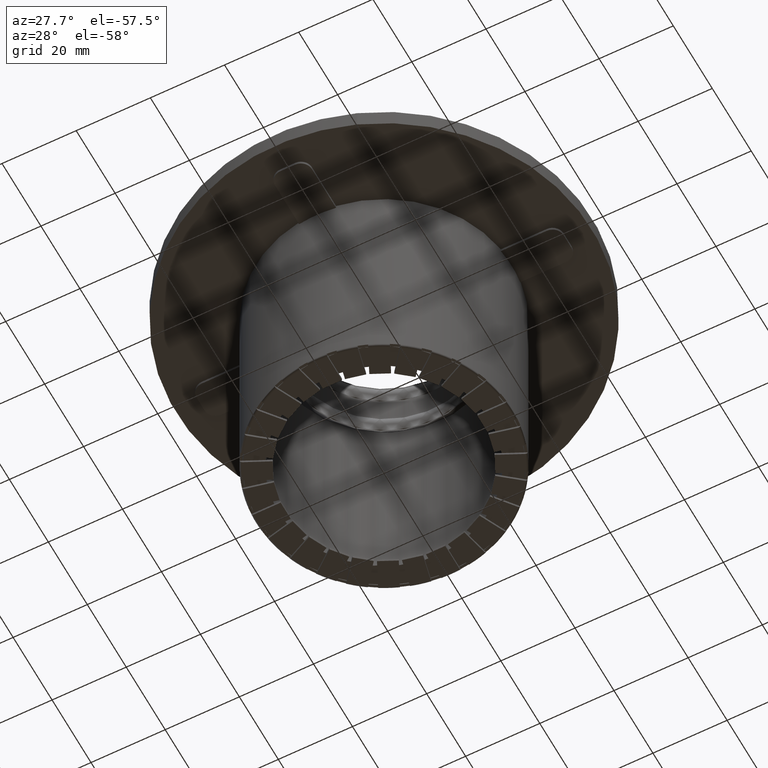
[diagram: clean part render]
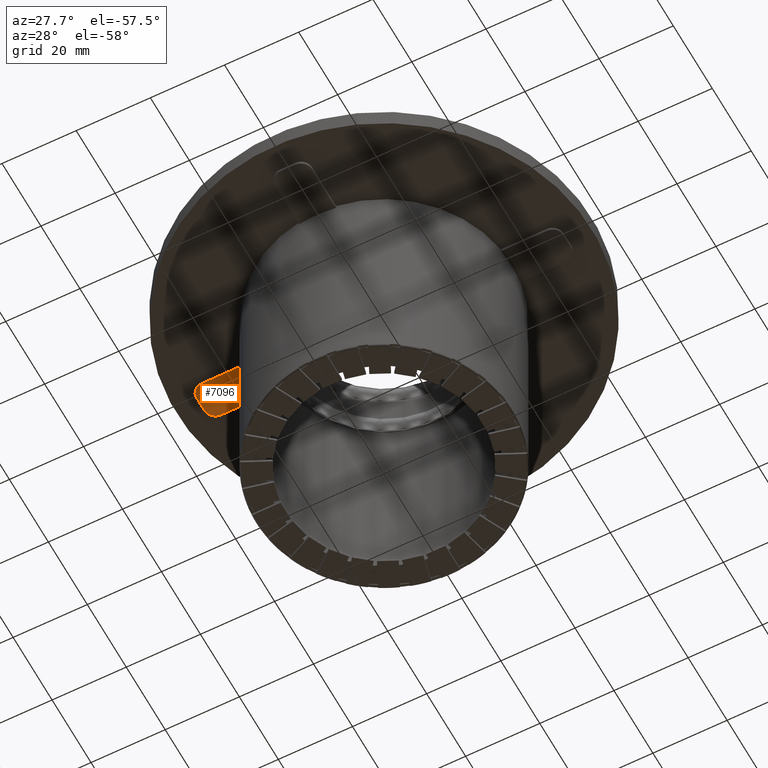
[diagram: same view with one face highlighted and labeled with its STEP entity id]
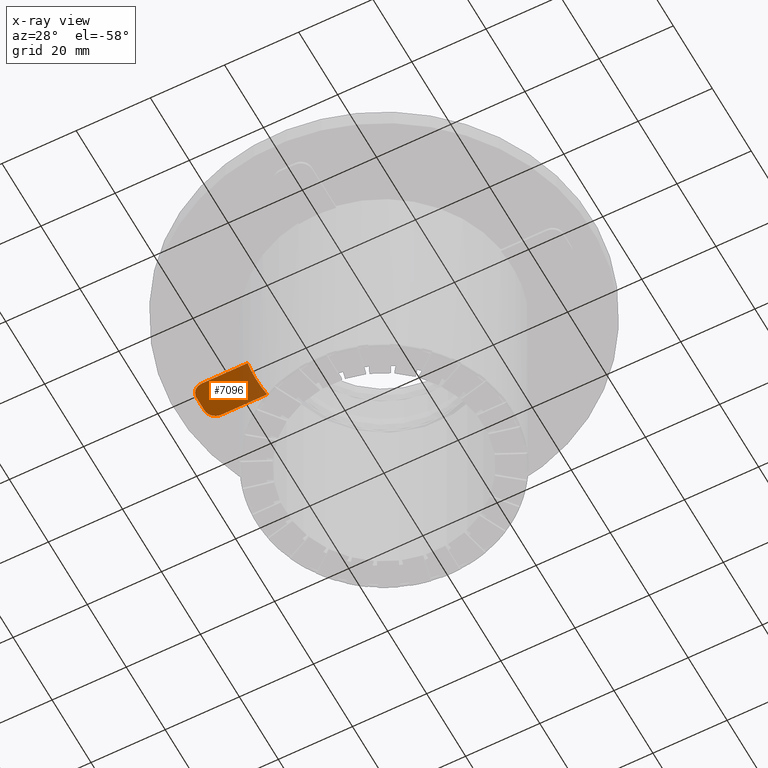
[diagram: x-ray of the same camera — body ghosted, the highlighted face saturated]
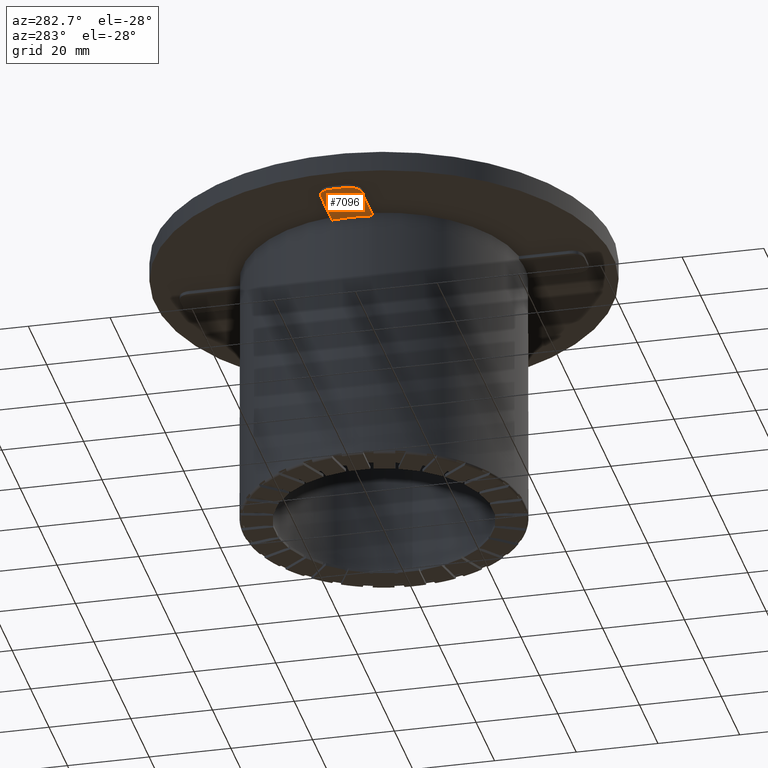
[diagram: same view with one face highlighted and labeled with its STEP entity id]
A machine part, auxiliary view. The second image highlights one B-rep face of the part: STEP entity #7096.
The next image is the same camera in x-ray: the body ghosted, the highlighted face saturated — about 31% of this face is hidden behind the body in this view.
A second angle (auxiliary view) of the same face is appended — the face is thin or edge-on in the first view.
In plain terms, the highlighted planar face has unit normal (0, 0, 1).
Its self-contained STEP definition (entity closure, byte-faithful):
#1334=CARTESIAN_POINT('',(-34.13575837739657,-4.999999999999999,63.499999999999979));
#1335=VERTEX_POINT('',#1334);
#1342=CARTESIAN_POINT('',(-34.13575837739657,5.0,63.499999999999979));
#1343=VERTEX_POINT('',#1342);
#1344=CARTESIAN_POINT('',(0.0,0.0,63.499999999999979));
#1345=DIRECTION('',(0.0,0.0,-1.0));
#1346=DIRECTION('',(-1.0,0.0,0.0));
#1347=AXIS2_PLACEMENT_3D('',#1344,#1345,#1346);
#1348=CIRCLE('',#1347,34.5);
#1349=EDGE_CURVE('',#1335,#1343,#1348,.T.);
#6938=CARTESIAN_POINT('',(-46.5,5.000000000000001,63.499999999999979));
#6939=VERTEX_POINT('',#6938);
#6940=CARTESIAN_POINT('',(-49.500000000000014,2.0,63.499999999999979));
#6941=VERTEX_POINT('',#6940);
#6942=CARTESIAN_POINT('',(-46.5,1.999999999999999,63.5));
#6943=DIRECTION('',(0.0,0.0,1.0));
#6944=DIRECTION('',(0.0,1.0,0.0));
#6945=AXIS2_PLACEMENT_3D('',#6942,#6943,#6944);
#6946=CIRCLE('',#6945,2.999999999999991);
#6947=EDGE_CURVE('',#6939,#6941,#6946,.T.);
#6980=CARTESIAN_POINT('',(-49.500000000000014,-2.0,63.499999999999979));
#6981=VERTEX_POINT('',#6980);
#6982=CARTESIAN_POINT('',(-49.500000000000014,2.0,63.5));
#6983=DIRECTION('',(0.0,-1.0,0.0));
#6984=VECTOR('',#6983,4.0);
#6985=LINE('',#6982,#6984);
#6986=EDGE_CURVE('',#6941,#6981,#6985,.T.);
#7011=CARTESIAN_POINT('',(-46.5,-5.0,63.499999999999979));
#7012=VERTEX_POINT('',#7011);
#7013=CARTESIAN_POINT('',(-46.5,-2.0,63.5));
#7014=DIRECTION('',(0.0,0.0,1.0));
#7015=DIRECTION('',(-1.0,0.0,0.0));
#7016=AXIS2_PLACEMENT_3D('',#7013,#7014,#7015);
#7017=CIRCLE('',#7016,3.000000000000002);
#7018=EDGE_CURVE('',#6981,#7012,#7017,.T.);
#7044=CARTESIAN_POINT('',(-46.5,-5.0,63.5));
#7045=DIRECTION('',(1.0,0.0,0.0));
#7046=VECTOR('',#7045,12.36424162260343);
#7047=LINE('',#7044,#7046);
#7048=EDGE_CURVE('',#7012,#1335,#7047,.T.);
#7066=CARTESIAN_POINT('',(-34.13575837739657,5.0,63.5));
#7067=DIRECTION('',(-1.0,0.0,0.0));
#7068=VECTOR('',#7067,12.36424162260343);
#7069=LINE('',#7066,#7068);
#7070=EDGE_CURVE('',#1343,#6939,#7069,.T.);
#7083=CARTESIAN_POINT('',(-41.412775178141032,-1.349979E-015,63.499999999999979));
#7084=DIRECTION('',(0.0,0.0,1.0));
#7085=DIRECTION('',(0.0,1.0,0.0));
#7086=AXIS2_PLACEMENT_3D('',#7083,#7084,#7085);
#7087=PLANE('',#7086);
#7088=ORIENTED_EDGE('',*,*,#6947,.F.);
#7089=ORIENTED_EDGE('',*,*,#7070,.F.);
#7090=ORIENTED_EDGE('',*,*,#1349,.F.);
#7091=ORIENTED_EDGE('',*,*,#7048,.F.);
#7092=ORIENTED_EDGE('',*,*,#7018,.F.);
#7093=ORIENTED_EDGE('',*,*,#6986,.F.);
#7094=EDGE_LOOP('',(#7088,#7089,#7090,#7091,#7092,#7093));
#7095=FACE_OUTER_BOUND('',#7094,.T.);
#7096=ADVANCED_FACE('',(#7095),#7087,.F.);